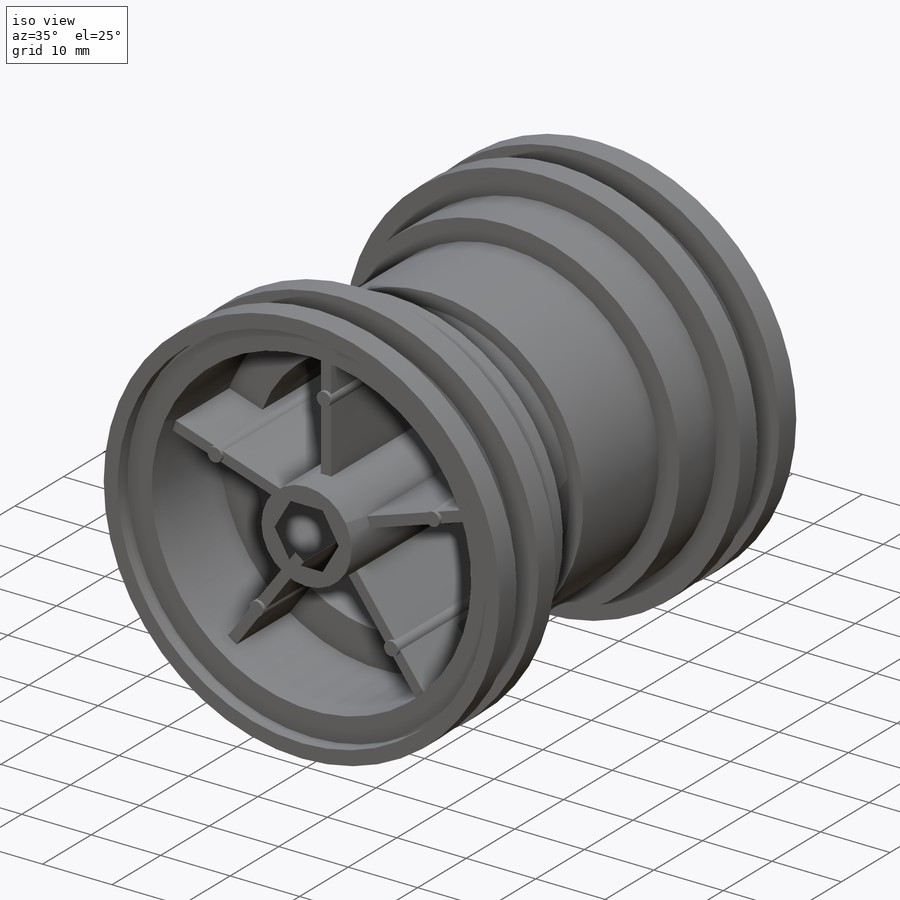
[diagram: iso view]
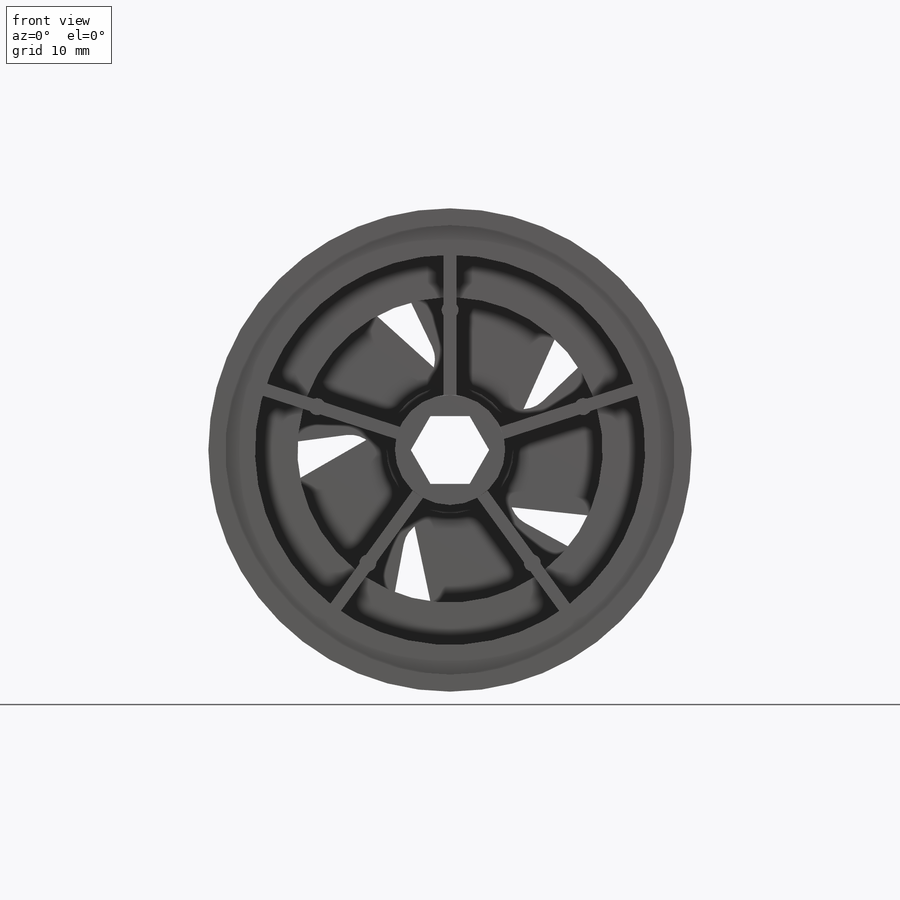
[diagram: front view]
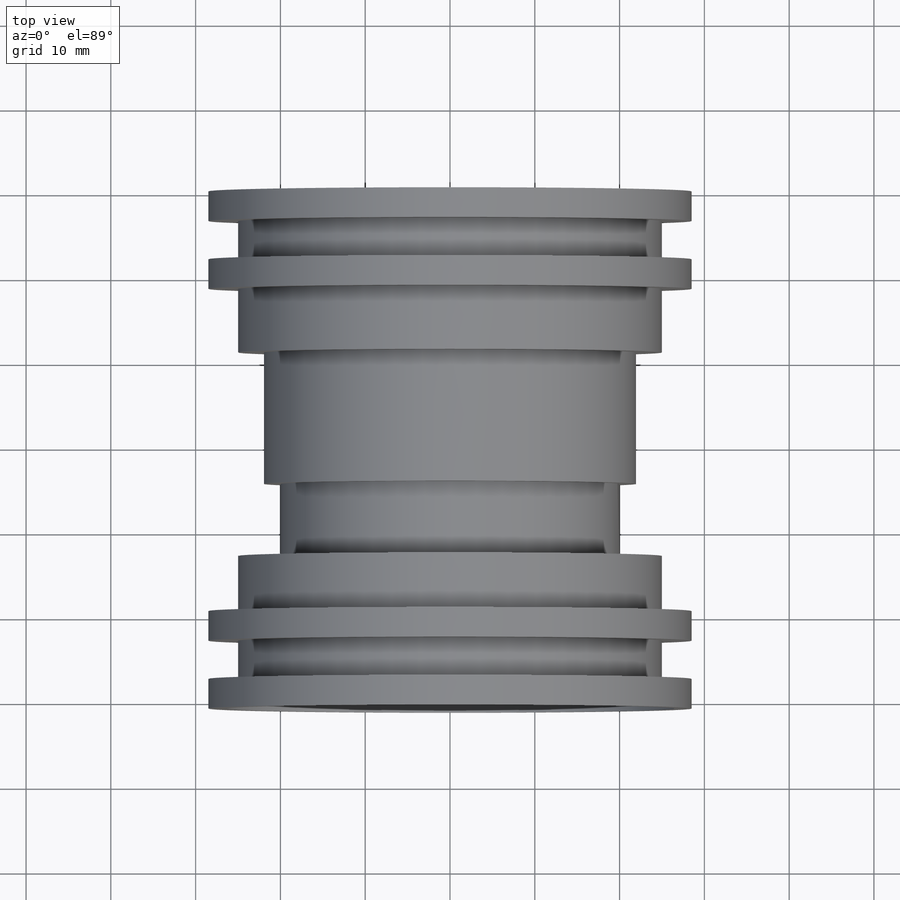
[diagram: top view]
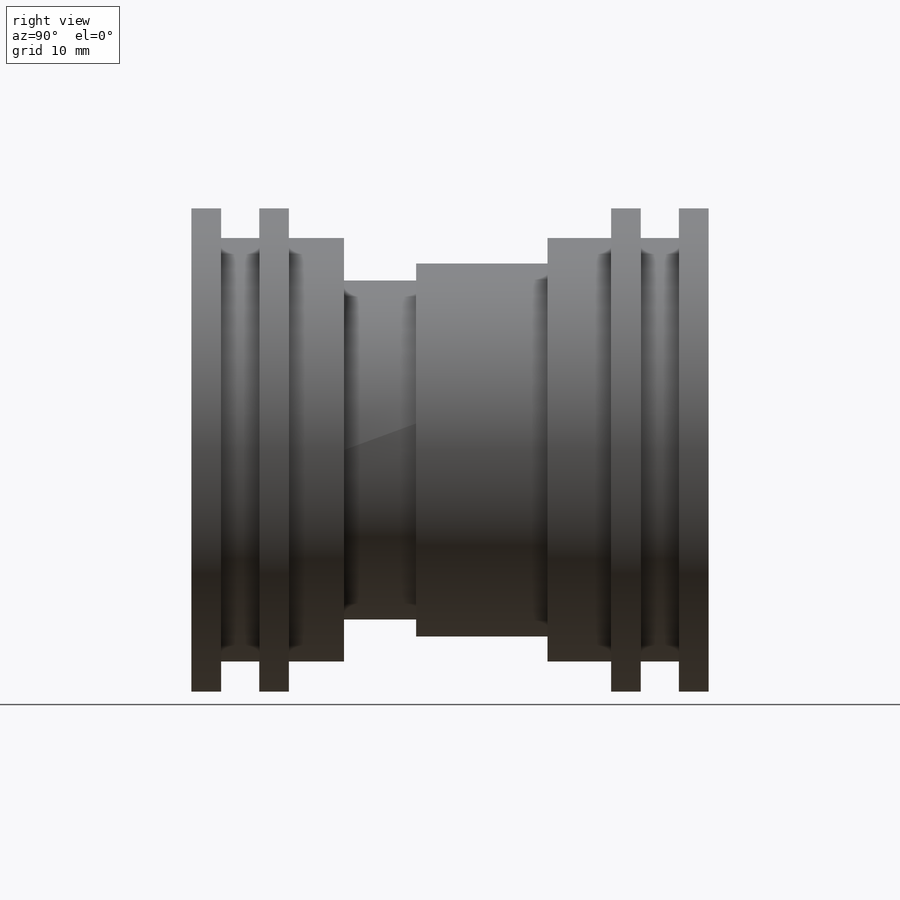
[diagram: right view]
SOLIDWORKS PART (.sldprt)
format: sldprt  version: not decoded by parser v0  size: 1,758,720 bytes
history: native  units: mm
features: sketch x12, pattern_circular x6, extrude x5, fillet x5, cut_extrude x3, revolve x2, material x1, chamfer x1, cut_revolve x1 (+13 scaffold rows collapsed)
feature tree (49):
  scaffold x13  (default folders/planes/origin — collapsed)
  material  "Malzeme <belirli değil>"
  sketch  "Sketch1"  dims[c1.D1=40.0mm c1.D2=44.0mm c1.D3=50.0mm c1.D4=58.0mm c1.D5=57.0mm c1.D6=53.0mm c1.D7=46.0mm c1.D8=36.0mm c1.D9=40.0mm c1.D10=3.5mm c1.D11=~157.039025mm c1.D12=8.5mm c1.D13=24.0mm c1.D14=4.5mm c1.D15=38.0mm c1.D16=32.0mm c1.D17=58.0mm c2.D11=61.0mm c2.D17=1.5mm c2.D18=2.0mm c2.D19=17.0mm c2.D20=16.0mm c2.D21=33.0mm c2.D22=33.0mm c2.D23=2.5mm c2.D16=19.0mm c3.D22=3.5mm]
  revolve  "Revolve1"  Angle=360deg
  chamfer  "Chamfer1"  Distance=1mm Angle=75deg
  sketch  "Sketch6"  dims[c1.D1=13.0mm c1.D2=1.5mm c1.D4=1.0mm c1.D5=1.0mm c2.D4=1.0mm c2.D3=5.0]
  extrude  "Boss-Extrude1"  Depth=12mm
  sketch  "Sketch5"  dims[c1.D1=13.0mm c1.D2=8.0mm c1.D3=9.0mm c1.D4=15.0mm c1.D5=13.0mm c1.D6=35.0mm c1.D7=6.0mm c1.D8=3.0mm c1.D9=0.5mm c1.D10=3.0mm c1.D11=5.0mm c2.D6=1.0mm c2.D12=12.0mm c2.D13=2.0mm c2.D2=1.0mm c2.D3=12.0mm c2.D5=11.0mm]
  revolve  "Revolve2"  Angle=360deg
  sketch  "Sketch15"
  cut_revolve  "Cut-Revolve1"  Angle=360deg
  sketch  "Sketch7"  dims[D1=2.0mm D2=16.5mm D3=5.0]
  extrude  "Boss-Extrude2"  Depth=0.5mm
  sketch  "Sketch8"  dims[D1=1.0mm]
  extrude  "Boss-Extrude3"  Depth=0.5mm
  fillet  "Fillet1"  Radius=0.5mm
  pattern_circular  "CirPattern1"  Count=34 Angle=10.588235deg
  sketch  "Sketch9"
  cut_extrude  "Cut-Extrude1"  [1 undecoded]
  sketch  "Sketch10"  dims[D1=1.5mm D3=0.25mm D4=1.0mm D2=5.0 D5=5.0]
  extrude  "Boss-Extrude6"  Depth=5mm
  sketch  "Sketch12"  dims[D1=5.0]
  sketch  "Sketch11"  dims[D1=0.0mm D2=0.0mm]
  extrude  "Boss-Extrude7"  Depth=0.25mm
  pattern_circular  "Draft2"  Angle=25deg  [1 undecoded]
  pattern_circular  "Draft3"  Angle=25deg  [1 undecoded]
  pattern_circular  "Draft4"  Angle=25deg  [1 undecoded]
  pattern_circular  "Draft5"  Angle=25deg  [1 undecoded]
  pattern_circular  "Draft6"  Angle=25deg  [1 undecoded]
  fillet  "Fillet13"  Radius=14mm
  fillet  "Fillet17"  Radius=1mm
  fillet  "Fillet18"  Radius=0.5mm
  sketch  "Sketch13"  dims[D1=2.0mm D2=2.5mm]
  cut_extrude  "Cut-Extrude2"  Depth=0.25mm
  fillet  "Fillet19"  Radius=0.25mm
  sketch  "Sketch14"  dims[D1=8.0mm]
  cut_extrude  "Cut-Extrude3"  [1 undecoded]
decode coverage: 31 of 35 modeling features carry decoded parameters
note: ~ marks probable driven/reference dimensions
note: 7 parameter values undecoded
note: suppression state not decoded; provenance and decode notes live in map.json
